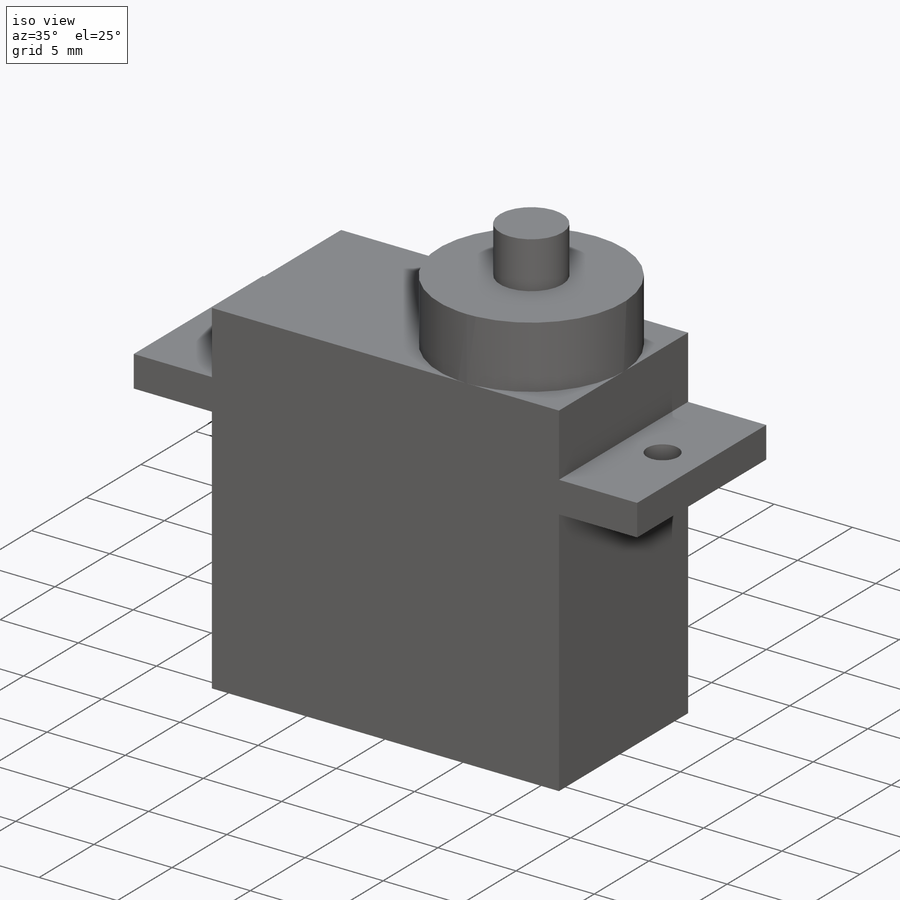
[diagram: iso view]
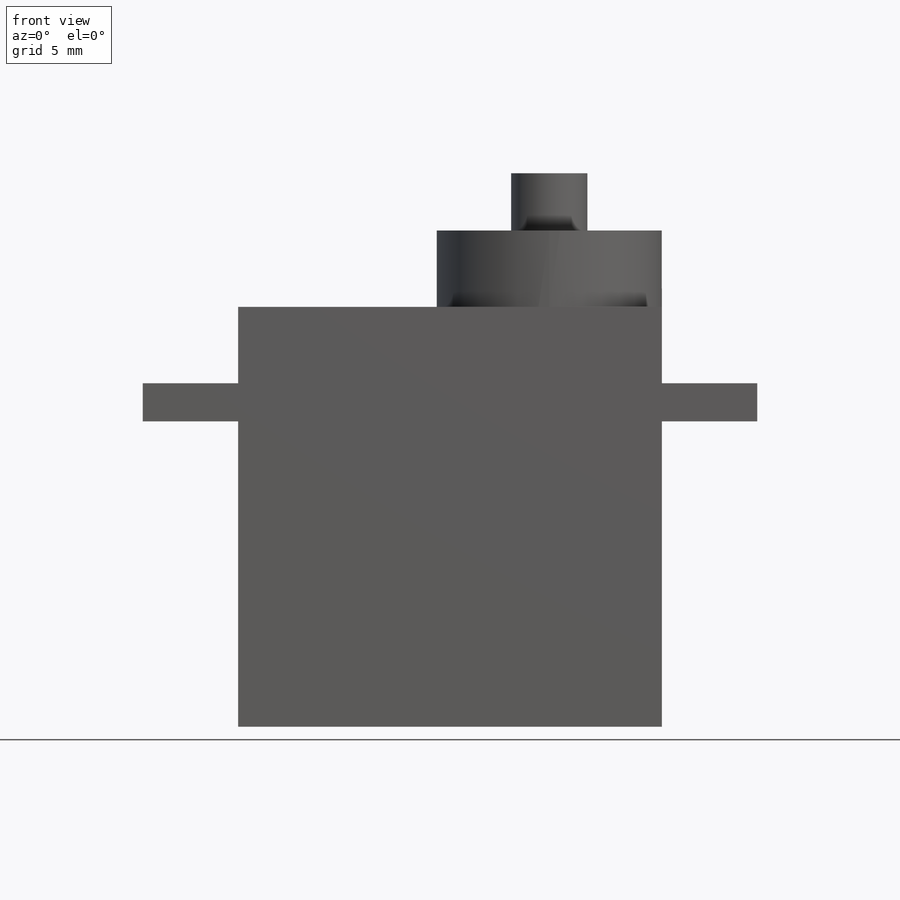
[diagram: front view]
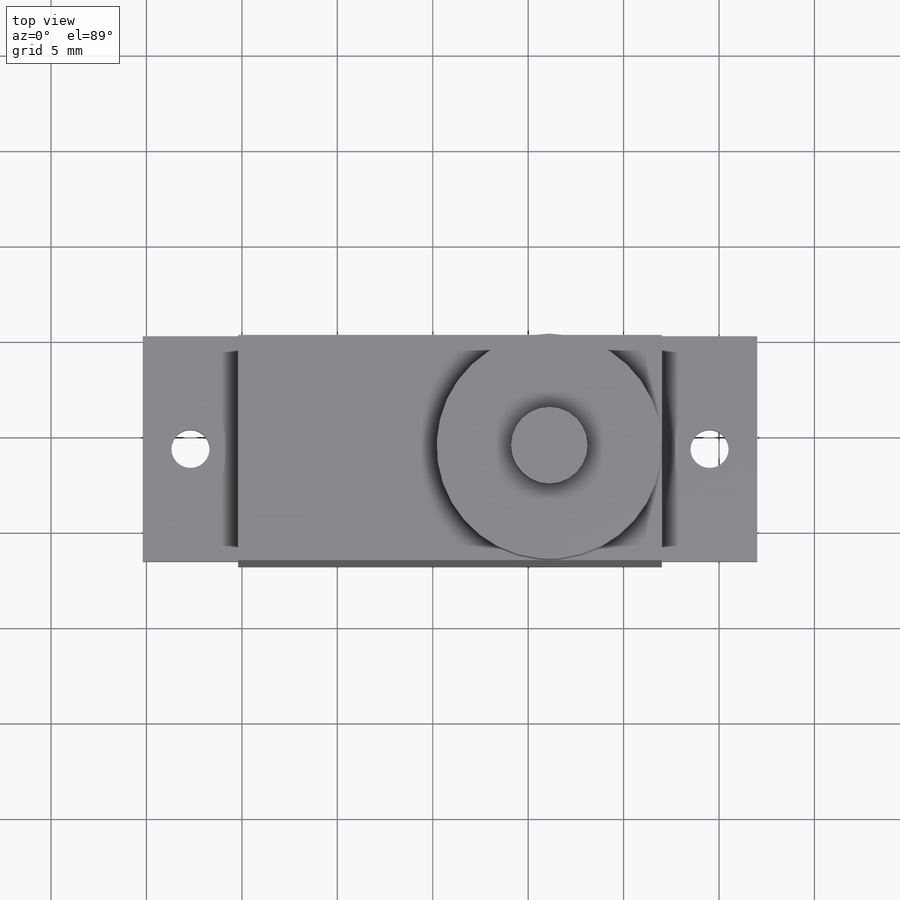
[diagram: top view]
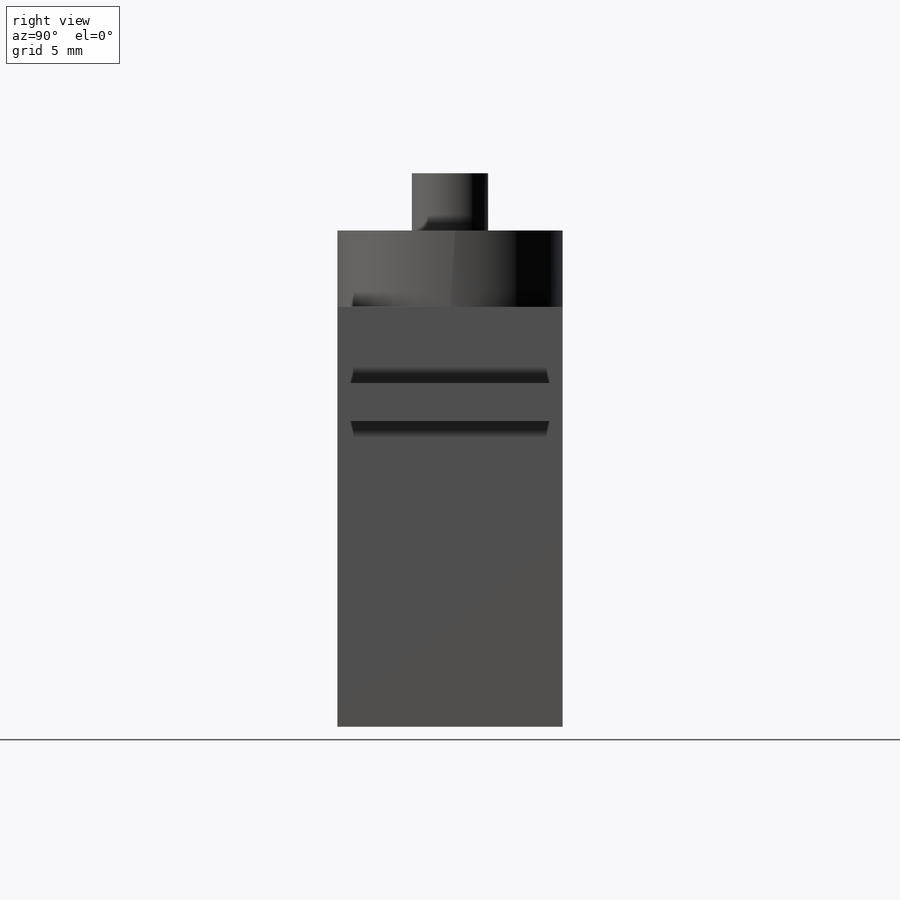
[diagram: right view]
SOLIDWORKS PART (.sldprt)
format: sldprt  version: not decoded by parser v0  size: 220,160 bytes
history: native  units: mm
features: sketch x6, extrude x4, plane x3, cut_extrude x2, material x1 (+10 scaffold rows collapsed)
feature tree (26):
  scaffold x10  (default folders/planes/origin — collapsed)
  material  "Matériau <non spécifié>"
  plane  "Plan de face"
  plane  "Plan de dessus"
  plane  "Plan de droite"
  sketch  "Esquisse1"  dims[D1=22.2mm D2=22.2mm D3=32.2mm D4=5.0mm D5=16.0mm D6=2.0mm D7=16.0mm D8=2.0mm D9=4.0mm]
  extrude  "Boss.-Extru.1"  Depth=11.8mm
  sketch  "Esquisse2"  dims[c1.D1=~2.196436mm c1.D2=2.0mm c1.D3=2.0mm c1.D4=~1.950101mm c1.D5=~1.950101mm c1.D6=2.0mm c2.D1=2.5mm c2.D3=5.9mm c2.D4=5.9mm c2.D5=2.5mm]
  cut_extrude  "Enlèv. mat.-Extru.1"  Depth=11.8mm
  sketch  "Esquisse3"  dims[c1.D1=11.8mm c1.D2=11.8mm c1.D3=11.8mm c2.D2=5.9mm c2.D3=5.9mm]
  extrude  "Boss.-Extru.2"  Depth=4mm
  sketch  "Esquisse4"  dims[D1=4.0mm D2=5.9mm D3=5.9mm]
  extrude  "Boss.-Extru.3"  Depth=3mm
  sketch  "Esquisse5"  dims[D1=5.0mm D2=3.5mm D3=4.0mm D4=3.0mm]
  extrude  "Boss.-Extru.4"  Depth=3mm
  sketch  "Esquisse6"
  cut_extrude  "Enlèv. mat.-Extru.2"  Depth=10mm
decode coverage: 11 of 12 modeling features carry decoded parameters
note: ~ marks probable driven/reference dimensions
note: suppression state not decoded; provenance and decode notes live in map.json
